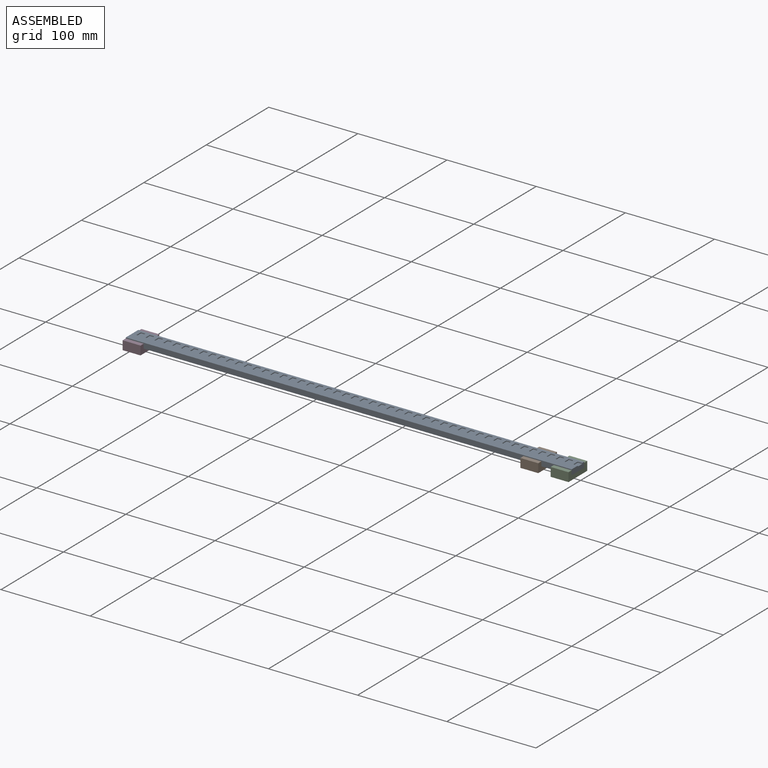
[diagram: assembled view]
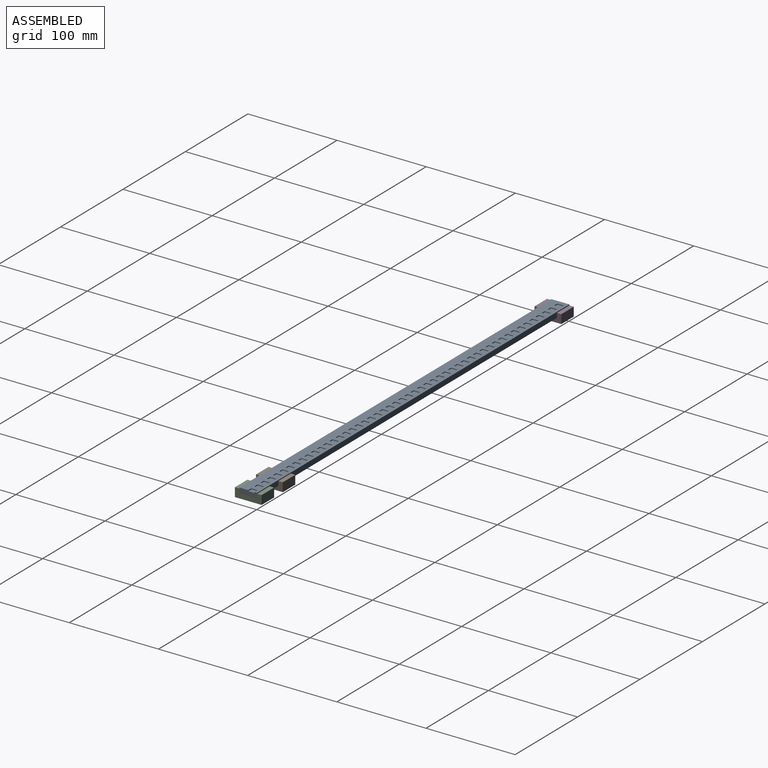
[diagram: assembled view, second angle]
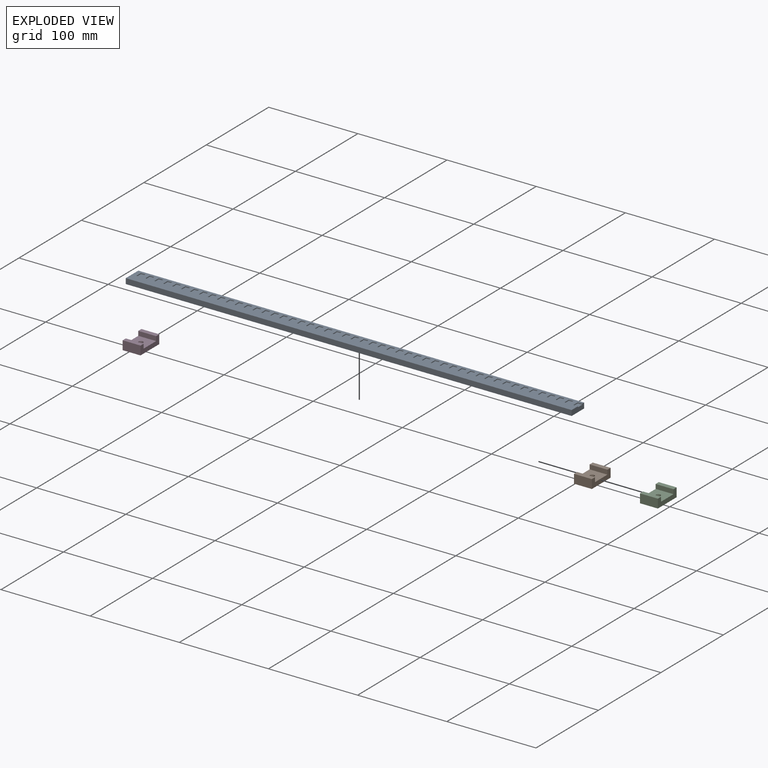
[diagram: exploded view]
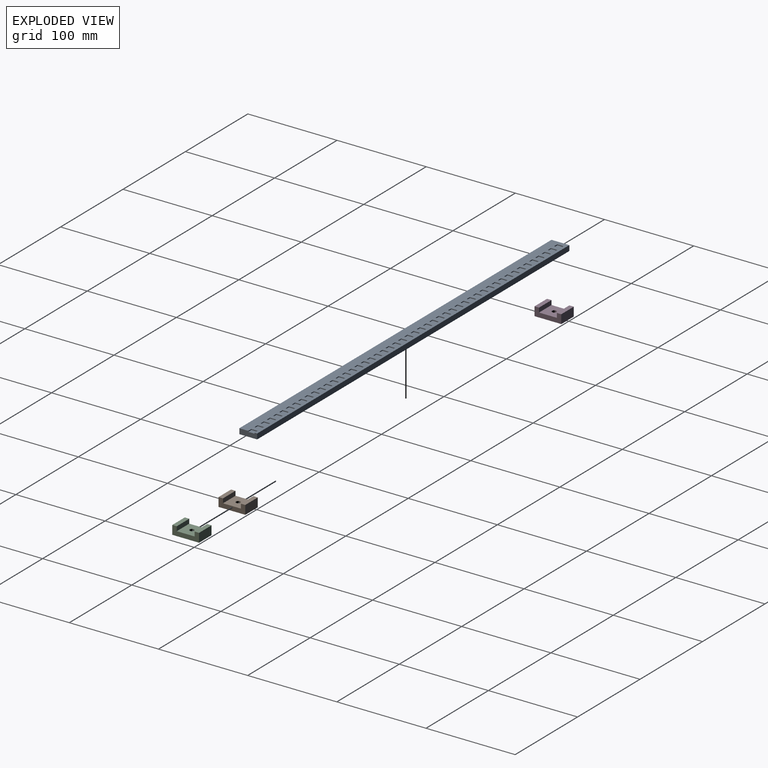
[diagram: exploded view, second angle]
ASSEMBLY  parts=4 mates=3
PART A: 255 faces, bbox 500x20x6 mm
  f0: plane 7x5mm, normal (0,0,1), area 35mm2, adj f4,f150,f151,f202
  f1: plane 500x6mm, normal (0,1,0), area 3000mm2, adj f2,f4,f5,f205
  f2: plane 20x6mm, normal (-1,0,0), area 120mm2, adj f1,f3,f5,f205
  f3: plane 500x6mm, normal (0,-1,0), area 3000mm2, adj f2,f4,f5,f205
  f4: plane 20x6mm, normal (1,0,0), area 113mm2, adj f0,f1,f3,f5,f151,f202,f205
  f5: plane 500x20mm, normal (0,0,-1), area 10000mm2, adj f1,f2,f3,f4
  f6: plane 7x1mm, normal (1,0,0), area 7mm2, adj f7,f204,f205,f206
  f7: plane 5x1mm, normal (0,-1,0), area 5mm2, adj f6,f8,f205,f206
  f8: plane 7x1mm, normal (-1,0,0), area 7mm2, adj f7,f204,f205,f206
  f9: plane 7x1mm, normal (1,0,0), area 7mm2, adj f10,f155,f205,f254
  f10: plane 5x1mm, normal (0,-1,0), area 5mm2, adj f9,f11,f205,f254
  f11: plane 7x1mm, normal (-1,0,0), area 7mm2, adj f10,f155,f205,f254
  f12: plane 7x1mm, normal (1,0,0), area 7mm2, adj f13,f156,f205,f253
  f13: plane 5x1mm, normal (0,-1,0), area 5mm2, adj f12,f14,f205,f253
  f14: plane 7x1mm, normal (-1,0,0), area 7mm2, adj f13,f156,f205,f253
  f15: plane 7x1mm, normal (1,0,0), area 7mm2, adj f16,f157,f205,f252
  f16: plane 5x1mm, normal (0,-1,0), area 5mm2, adj f15,f17,f205,f252
  f17: plane 7x1mm, normal (-1,0,0), area 7mm2, adj f16,f157,f205,f252
  f18: plane 7x1mm, normal (1,0,0), area 7mm2, adj f19,f158,f205,f251
  f19: plane 5x1mm, normal (0,-1,0), area 5mm2, adj f18,f20,f205,f251
  f20: plane 7x1mm, normal (-1,0,0), area 7mm2, adj f19,f158,f205,f251
  f21: plane 7x1mm, normal (1,0,0), area 7mm2, adj f22,f159,f205,f250
  f22: plane 5x1mm, normal (0,-1,0), area 5mm2, adj f21,f23,f205,f250
  f23: plane 7x1mm, normal (-1,0,0), area 7mm2, adj f22,f159,f205,f250
  f24: plane 7x1mm, normal (1,0,0), area 7mm2, adj f25,f160,f205,f249
  f25: plane 5x1mm, normal (0,-1,0), area 5mm2, adj f24,f26,f205,f249
  f26: plane 7x1mm, normal (-1,0,0), area 7mm2, adj f25,f160,f205,f249
  f27: plane 7x1mm, normal (1,0,0), area 7mm2, adj f28,f161,f205,f248
  f28: plane 5x1mm, normal (0,-1,0), area 5mm2, adj f27,f29,f205,f248
  f29: plane 7x1mm, normal (-1,0,0), area 7mm2, adj f28,f161,f205,f248
  f30: plane 7x1mm, normal (1,0,0), area 7mm2, adj f31,f162,f205,f247
  f31: plane 5x1mm, normal (0,-1,0), area 5mm2, adj f30,f32,f205,f247
  f32: plane 7x1mm, normal (-1,0,0), area 7mm2, adj f31,f162,f205,f247
  f33: plane 7x1mm, normal (1,0,0), area 7mm2, adj f34,f163,f205,f246
  f34: plane 5x1mm, normal (0,-1,0), area 5mm2, adj f33,f35,f205,f246
  f35: plane 7x1mm, normal (-1,0,0), area 7mm2, adj f34,f163,f205,f246
  f36: plane 7x1mm, normal (1,0,0), area 7mm2, adj f37,f164,f205,f245
  f37: plane 5x1mm, normal (0,-1,0), area 5mm2, adj f36,f38,f205,f245
  f38: plane 7x1mm, normal (-1,0,0), area 7mm2, adj f37,f164,f205,f245
  f39: plane 7x1mm, normal (1,0,0), area 7mm2, adj f40,f165,f205,f244
  f40: plane 5x1mm, normal (0,-1,0), area 5mm2, adj f39,f41,f205,f244
  f41: plane 7x1mm, normal (-1,0,0), area 7mm2, adj f40,f165,f205,f244
  f42: plane 7x1mm, normal (1,0,0), area 7mm2, adj f43,f166,f205,f243
  f43: plane 5x1mm, normal (0,-1,0), area 5mm2, adj f42,f44,f205,f243
  f44: plane 7x1mm, normal (-1,0,0), area 7mm2, adj f43,f166,f205,f243
  f45: plane 7x1mm, normal (1,0,0), area 7mm2, adj f46,f167,f205,f242
  f46: plane 5x1mm, normal (0,-1,0), area 5mm2, adj f45,f47,f205,f242
  f47: plane 7x1mm, normal (-1,0,0), area 7mm2, adj f46,f167,f205,f242
  f48: plane 7x1mm, normal (1,0,0), area 7mm2, adj f49,f168,f205,f241
  f49: plane 5x1mm, normal (0,-1,0), area 5mm2, adj f48,f50,f205,f241
  f50: plane 7x1mm, normal (-1,0,0), area 7mm2, adj f49,f168,f205,f241
  f51: plane 7x1mm, normal (1,0,0), area 7mm2, adj f52,f169,f205,f240
  f52: plane 5x1mm, normal (0,-1,0), area 5mm2, adj f51,f53,f205,f240
  f53: plane 7x1mm, normal (-1,0,0), area 7mm2, adj f52,f169,f205,f240
  f54: plane 7x1mm, normal (1,0,0), area 7mm2, adj f55,f170,f205,f239
  f55: plane 5x1mm, normal (0,-1,0), area 5mm2, adj f54,f56,f205,f239
  f56: plane 7x1mm, normal (-1,0,0), area 7mm2, adj f55,f170,f205,f239
  f57: plane 7x1mm, normal (1,0,0), area 7mm2, adj f58,f171,f205,f238
  f58: plane 5x1mm, normal (0,-1,0), area 5mm2, adj f57,f59,f205,f238
  f59: plane 7x1mm, normal (-1,0,0), area 7mm2, adj f58,f171,f205,f238
  f60: plane 7x1mm, normal (1,0,0), area 7mm2, adj f61,f172,f205,f237
  f61: plane 5x1mm, normal (0,-1,0), area 5mm2, adj f60,f62,f205,f237
  f62: plane 7x1mm, normal (-1,0,0), area 7mm2, adj f61,f172,f205,f237
  f63: plane 7x1mm, normal (1,0,0), area 7mm2, adj f64,f173,f205,f236
  f64: plane 5x1mm, normal (0,-1,0), area 5mm2, adj f63,f65,f205,f236
  f65: plane 7x1mm, normal (-1,0,0), area 7mm2, adj f64,f173,f205,f236
  f66: plane 7x1mm, normal (1,0,0), area 7mm2, adj f67,f174,f205,f235
  f67: plane 5x1mm, normal (0,-1,0), area 5mm2, adj f66,f68,f205,f235
  f68: plane 7x1mm, normal (-1,0,0), area 7mm2, adj f67,f174,f205,f235
  f69: plane 7x1mm, normal (1,0,0), area 7mm2, adj f70,f175,f205,f234
  f70: plane 5x1mm, normal (0,-1,0), area 5mm2, adj f69,f71,f205,f234
  f71: plane 7x1mm, normal (-1,0,0), area 7mm2, adj f70,f175,f205,f234
  f72: plane 7x1mm, normal (1,0,0), area 7mm2, adj f73,f176,f205,f233
  f73: plane 5x1mm, normal (0,-1,0), area 5mm2, adj f72,f74,f205,f233
  f74: plane 7x1mm, normal (-1,0,0), area 7mm2, adj f73,f176,f205,f233
  f75: plane 7x1mm, normal (1,0,0), area 7mm2, adj f76,f177,f205,f232
  f76: plane 5x1mm, normal (0,-1,0), area 5mm2, adj f75,f77,f205,f232
  f77: plane 7x1mm, normal (-1,0,0), area 7mm2, adj f76,f177,f205,f232
  f78: plane 7x1mm, normal (1,0,0), area 7mm2, adj f79,f178,f205,f231
  f79: plane 5x1mm, normal (0,-1,0), area 5mm2, adj f78,f80,f205,f231
  f80: plane 7x1mm, normal (-1,0,0), area 7mm2, adj f79,f178,f205,f231
  f81: plane 7x1mm, normal (1,0,0), area 7mm2, adj f82,f179,f205,f230
  f82: plane 5x1mm, normal (0,-1,0), area 5mm2, adj f81,f83,f205,f230
  f83: plane 7x1mm, normal (-1,0,0), area 7mm2, adj f82,f179,f205,f230
  f84: plane 7x1mm, normal (1,0,0), area 7mm2, adj f85,f180,f205,f229
  f85: plane 5x1mm, normal (0,-1,0), area 5mm2, adj f84,f86,f205,f229
  f86: plane 7x1mm, normal (-1,0,0), area 7mm2, adj f85,f180,f205,f229
  f87: plane 7x1mm, normal (1,0,0), area 7mm2, adj f88,f181,f205,f228
  f88: plane 5x1mm, normal (0,-1,0), area 5mm2, adj f87,f89,f205,f228
  f89: plane 7x1mm, normal (-1,0,0), area 7mm2, adj f88,f181,f205,f228
  f90: plane 7x1mm, normal (1,0,0), area 7mm2, adj f91,f182,f205,f227
  f91: plane 5x1mm, normal (0,-1,0), area 5mm2, adj f90,f92,f205,f227
  f92: plane 7x1mm, normal (-1,0,0), area 7mm2, adj f91,f182,f205,f227
  f93: plane 7x1mm, normal (1,0,0), area 7mm2, adj f94,f183,f205,f226
  f94: plane 5x1mm, normal (0,-1,0), area 5mm2, adj f93,f95,f205,f226
  f95: plane 7x1mm, normal (-1,0,0), area 7mm2, adj f94,f183,f205,f226
  f96: plane 7x1mm, normal (1,0,0), area 7mm2, adj f97,f184,f205,f225
  f97: plane 5x1mm, normal (0,-1,0), area 5mm2, adj f96,f98,f205,f225
  f98: plane 7x1mm, normal (-1,0,0), area 7mm2, adj f97,f184,f205,f225
  f99: plane 7x1mm, normal (1,0,0), area 7mm2, adj f100,f185,f205,f224
  f100: plane 5x1mm, normal (0,-1,0), area 5mm2, adj f99,f101,f205,f224
  f101: plane 7x1mm, normal (-1,0,0), area 7mm2, adj f100,f185,f205,f224
  f102: plane 7x1mm, normal (1,0,0), area 7mm2, adj f103,f186,f205,f223
  f103: plane 5x1mm, normal (0,-1,0), area 5mm2, adj f102,f104,f205,f223
  f104: plane 7x1mm, normal (-1,0,0), area 7mm2, adj f103,f186,f205,f223
  f105: plane 7x1mm, normal (1,0,0), area 7mm2, adj f106,f187,f205,f222
  f106: plane 5x1mm, normal (0,-1,0), area 5mm2, adj f105,f107,f205,f222
  f107: plane 7x1mm, normal (-1,0,0), area 7mm2, adj f106,f187,f205,f222
  f108: plane 7x1mm, normal (1,0,0), area 7mm2, adj f109,f188,f205,f221
  f109: plane 5x1mm, normal (0,-1,0), area 5mm2, adj f108,f110,f205,f221
  f110: plane 7x1mm, normal (-1,0,0), area 7mm2, adj f109,f188,f205,f221
  f111: plane 7x1mm, normal (1,0,0), area 7mm2, adj f112,f189,f205,f220
  f112: plane 5x1mm, normal (0,-1,0), area 5mm2, adj f111,f113,f205,f220
  f113: plane 7x1mm, normal (-1,0,0), area 7mm2, adj f112,f189,f205,f220
  f114: plane 7x1mm, normal (1,0,0), area 7mm2, adj f115,f190,f205,f219
  f115: plane 5x1mm, normal (0,-1,0), area 5mm2, adj f114,f116,f205,f219
  f116: plane 7x1mm, normal (-1,0,0), area 7mm2, adj f115,f190,f205,f219
  f117: plane 7x1mm, normal (1,0,0), area 7mm2, adj f118,f191,f205,f218
  f118: plane 5x1mm, normal (0,-1,0), area 5mm2, adj f117,f119,f205,f218
  f119: plane 7x1mm, normal (-1,0,0), area 7mm2, adj f118,f191,f205,f218
  f120: plane 7x1mm, normal (1,0,0), area 7mm2, adj f121,f192,f205,f217
  f121: plane 5x1mm, normal (0,-1,0), area 5mm2, adj f120,f122,f205,f217
  f122: plane 7x1mm, normal (-1,0,0), area 7mm2, adj f121,f192,f205,f217
  f123: plane 7x1mm, normal (1,0,0), area 7mm2, adj f124,f193,f205,f216
  f124: plane 5x1mm, normal (0,-1,0), area 5mm2, adj f123,f125,f205,f216
  f125: plane 7x1mm, normal (-1,0,0), area 7mm2, adj f124,f193,f205,f216
  f126: plane 7x1mm, normal (1,0,0), area 7mm2, adj f127,f194,f205,f215
  f127: plane 5x1mm, normal (0,-1,0), area 5mm2, adj f126,f128,f205,f215
  f128: plane 7x1mm, normal (-1,0,0), area 7mm2, adj f127,f194,f205,f215
  f129: plane 7x1mm, normal (1,0,0), area 7mm2, adj f130,f195,f205,f214
  f130: plane 5x1mm, normal (0,-1,0), area 5mm2, adj f129,f131,f205,f214
  f131: plane 7x1mm, normal (-1,0,0), area 7mm2, adj f130,f195,f205,f214
  f132: plane 7x1mm, normal (1,0,0), area 7mm2, adj f133,f196,f205,f213
  f133: plane 5x1mm, normal (0,-1,0), area 5mm2, adj f132,f134,f205,f213
  f134: plane 7x1mm, normal (-1,0,0), area 7mm2, adj f133,f196,f205,f213
  f135: plane 7x1mm, normal (1,0,0), area 7mm2, adj f136,f197,f205,f212
  f136: plane 5x1mm, normal (0,-1,0), area 5mm2, adj f135,f137,f205,f212
  f137: plane 7x1mm, normal (-1,0,0), area 7mm2, adj f136,f197,f205,f212
  f138: plane 7x1mm, normal (1,0,0), area 7mm2, adj f139,f198,f205,f211
  f139: plane 5x1mm, normal (0,-1,0), area 5mm2, adj f138,f140,f205,f211
  f140: plane 7x1mm, normal (-1,0,0), area 7mm2, adj f139,f198,f205,f211
  f141: plane 7x1mm, normal (1,0,0), area 7mm2, adj f142,f199,f205,f210
  f142: plane 5x1mm, normal (0,-1,0), area 5mm2, adj f141,f143,f205,f210
  f143: plane 7x1mm, normal (-1,0,0), area 7mm2, adj f142,f199,f205,f210
  f144: plane 7x1mm, normal (1,0,0), area 7mm2, adj f145,f200,f205,f209
  f145: plane 5x1mm, normal (0,-1,0), area 5mm2, adj f144,f146,f205,f209
  f146: plane 7x1mm, normal (-1,0,0), area 7mm2, adj f145,f200,f205,f209
  f147: plane 7x1mm, normal (1,0,0), area 7mm2, adj f148,f201,f205,f208
  f148: plane 5x1mm, normal (0,-1,0), area 5mm2, adj f147,f149,f205,f208
  f149: plane 7x1mm, normal (-1,0,0), area 7mm2, adj f148,f201,f205,f208
  f150: plane 7x1mm, normal (1,0,0), area 7mm2, adj f0,f151,f202,f205
  f151: plane 5x1mm, normal (0,-1,0), area 5mm2, adj f0,f4,f150,f205
  f152: plane 7x1mm, normal (1,0,0), area 7mm2, adj f153,f203,f205,f207
  f153: plane 5x1mm, normal (0,-1,0), area 5mm2, adj f152,f154,f205,f207
  f154: plane 7x1mm, normal (-1,0,0), area 7mm2, adj f153,f203,f205,f207
  f155: plane 5x1mm, normal (0,1,0), area 5mm2, adj f9,f11,f205,f254
  f156: plane 5x1mm, normal (0,1,0), area 5mm2, adj f12,f14,f205,f253
  f157: plane 5x1mm, normal (0,1,0), area 5mm2, adj f15,f17,f205,f252
  f158: plane 5x1mm, normal (0,1,0), area 5mm2, adj f18,f20,f205,f251
  f159: plane 5x1mm, normal (0,1,0), area 5mm2, adj f21,f23,f205,f250
  f160: plane 5x1mm, normal (0,1,0), area 5mm2, adj f24,f26,f205,f249
  f161: plane 5x1mm, normal (0,1,0), area 5mm2, adj f27,f29,f205,f248
  f162: plane 5x1mm, normal (0,1,0), area 5mm2, adj f30,f32,f205,f247
  f163: plane 5x1mm, normal (0,1,0), area 5mm2, adj f33,f35,f205,f246
  f164: plane 5x1mm, normal (0,1,0), area 5mm2, adj f36,f38,f205,f245
  f165: plane 5x1mm, normal (0,1,0), area 5mm2, adj f39,f41,f205,f244
  f166: plane 5x1mm, normal (0,1,0), area 5mm2, adj f42,f44,f205,f243
  f167: plane 5x1mm, normal (0,1,0), area 5mm2, adj f45,f47,f205,f242
  f168: plane 5x1mm, normal (0,1,0), area 5mm2, adj f48,f50,f205,f241
  f169: plane 5x1mm, normal (0,1,0), area 5mm2, adj f51,f53,f205,f240
  f170: plane 5x1mm, normal (0,1,0), area 5mm2, adj f54,f56,f205,f239
  f171: plane 5x1mm, normal (0,1,0), area 5mm2, adj f57,f59,f205,f238
  f172: plane 5x1mm, normal (0,1,0), area 5mm2, adj f60,f62,f205,f237
  f173: plane 5x1mm, normal (0,1,0), area 5mm2, adj f63,f65,f205,f236
  f174: plane 5x1mm, normal (0,1,0), area 5mm2, adj f66,f68,f205,f235
  f175: plane 5x1mm, normal (0,1,0), area 5mm2, adj f69,f71,f205,f234
  f176: plane 5x1mm, normal (0,1,0), area 5mm2, adj f72,f74,f205,f233
  f177: plane 5x1mm, normal (0,1,0), area 5mm2, adj f75,f77,f205,f232
  f178: plane 5x1mm, normal (0,1,0), area 5mm2, adj f78,f80,f205,f231
  f179: plane 5x1mm, normal (0,1,0), area 5mm2, adj f81,f83,f205,f230
  f180: plane 5x1mm, normal (0,1,0), area 5mm2, adj f84,f86,f205,f229
  f181: plane 5x1mm, normal (0,1,0), area 5mm2, adj f87,f89,f205,f228
  f182: plane 5x1mm, normal (0,1,0), area 5mm2, adj f90,f92,f205,f227
  f183: plane 5x1mm, normal (0,1,0), area 5mm2, adj f93,f95,f205,f226
  f184: plane 5x1mm, normal (0,1,0), area 5mm2, adj f96,f98,f205,f225
  f185: plane 5x1mm, normal (0,1,0), area 5mm2, adj f99,f101,f205,f224
  f186: plane 5x1mm, normal (0,1,0), area 5mm2, adj f102,f104,f205,f223
  f187: plane 5x1mm, normal (0,1,0), area 5mm2, adj f105,f107,f205,f222
  f188: plane 5x1mm, normal (0,1,0), area 5mm2, adj f108,f110,f205,f221
  f189: plane 5x1mm, normal (0,1,0), area 5mm2, adj f111,f113,f205,f220
  f190: plane 5x1mm, normal (0,1,0), area 5mm2, adj f114,f116,f205,f219
  f191: plane 5x1mm, normal (0,1,0), area 5mm2, adj f117,f119,f205,f218
  f192: plane 5x1mm, normal (0,1,0), area 5mm2, adj f120,f122,f205,f217
  f193: plane 5x1mm, normal (0,1,0), area 5mm2, adj f123,f125,f205,f216
  f194: plane 5x1mm, normal (0,1,0), area 5mm2, adj f126,f128,f205,f215
  f195: plane 5x1mm, normal (0,1,0), area 5mm2, adj f129,f131,f205,f214
  f196: plane 5x1mm, normal (0,1,0), area 5mm2, adj f132,f134,f205,f213
  f197: plane 5x1mm, normal (0,1,0), area 5mm2, adj f135,f137,f205,f212
  f198: plane 5x1mm, normal (0,1,0), area 5mm2, adj f138,f140,f205,f211
  f199: plane 5x1mm, normal (0,1,0), area 5mm2, adj f141,f143,f205,f210
  f200: plane 5x1mm, normal (0,1,0), area 5mm2, adj f144,f146,f205,f209
  f201: plane 5x1mm, normal (0,1,0), area 5mm2, adj f147,f149,f205,f208
  f202: plane 5x1mm, normal (0,1,0), area 5mm2, adj f0,f4,f150,f205
  f203: plane 5x1mm, normal (0,1,0), area 5mm2, adj f152,f154,f205,f207
  f204: plane 5x1mm, normal (0,1,0), area 5mm2, adj f6,f8,f205,f206
  f205: plane 500x20mm, normal (0,0,1), area 8250mm2, adj f1,f2,f3,f4,f6,f7,f8,f9
  f206: plane 7x5mm, normal (0,0,1), area 35mm2, adj f6,f7,f8,f204
  f207: plane 7x5mm, normal (0,0,1), area 35mm2, adj f152,f153,f154,f203
  f208: plane 7x5mm, normal (0,0,1), area 35mm2, adj f147,f148,f149,f201
  f209: plane 7x5mm, normal (0,0,1), area 35mm2, adj f144,f145,f146,f200
  f210: plane 7x5mm, normal (0,0,1), area 35mm2, adj f141,f142,f143,f199
  f211: plane 7x5mm, normal (0,0,1), area 35mm2, adj f138,f139,f140,f198
  f212: plane 7x5mm, normal (0,0,1), area 35mm2, adj f135,f136,f137,f197
  f213: plane 7x5mm, normal (0,0,1), area 35mm2, adj f132,f133,f134,f196
  f214: plane 7x5mm, normal (0,0,1), area 35mm2, adj f129,f130,f131,f195
  f215: plane 7x5mm, normal (0,0,1), area 35mm2, adj f126,f127,f128,f194
  f216: plane 7x5mm, normal (0,0,1), area 35mm2, adj f123,f124,f125,f193
  f217: plane 7x5mm, normal (0,0,1), area 35mm2, adj f120,f121,f122,f192
  f218: plane 7x5mm, normal (0,0,1), area 35mm2, adj f117,f118,f119,f191
  f219: plane 7x5mm, normal (0,0,1), area 35mm2, adj f114,f115,f116,f190
  f220: plane 7x5mm, normal (0,0,1), area 35mm2, adj f111,f112,f113,f189
  f221: plane 7x5mm, normal (0,0,1), area 35mm2, adj f108,f109,f110,f188
  f222: plane 7x5mm, normal (0,0,1), area 35mm2, adj f105,f106,f107,f187
  f223: plane 7x5mm, normal (0,0,1), area 35mm2, adj f102,f103,f104,f186
  f224: plane 7x5mm, normal (0,0,1), area 35mm2, adj f99,f100,f101,f185
  f225: plane 7x5mm, normal (0,0,1), area 35mm2, adj f96,f97,f98,f184
  f226: plane 7x5mm, normal (0,0,1), area 35mm2, adj f93,f94,f95,f183
  f227: plane 7x5mm, normal (0,0,1), area 35mm2, adj f90,f91,f92,f182
  f228: plane 7x5mm, normal (0,0,1), area 35mm2, adj f87,f88,f89,f181
  f229: plane 7x5mm, normal (0,0,1), area 35mm2, adj f84,f85,f86,f180
  f230: plane 7x5mm, normal (0,0,1), area 35mm2, adj f81,f82,f83,f179
  f231: plane 7x5mm, normal (0,0,1), area 35mm2, adj f78,f79,f80,f178
  f232: plane 7x5mm, normal (0,0,1), area 35mm2, adj f75,f76,f77,f177
  f233: plane 7x5mm, normal (0,0,1), area 35mm2, adj f72,f73,f74,f176
  f234: plane 7x5mm, normal (0,0,1), area 35mm2, adj f69,f70,f71,f175
  f235: plane 7x5mm, normal (0,0,1), area 35mm2, adj f66,f67,f68,f174
  f236: plane 7x5mm, normal (0,0,1), area 35mm2, adj f63,f64,f65,f173
  f237: plane 7x5mm, normal (0,0,1), area 35mm2, adj f60,f61,f62,f172
  f238: plane 7x5mm, normal (0,0,1), area 35mm2, adj f57,f58,f59,f171
  f239: plane 7x5mm, normal (0,0,1), area 35mm2, adj f54,f55,f56,f170
  f240: plane 7x5mm, normal (0,0,1), area 35mm2, adj f51,f52,f53,f169
  f241: plane 7x5mm, normal (0,0,1), area 35mm2, adj f48,f49,f50,f168
  f242: plane 7x5mm, normal (0,0,1), area 35mm2, adj f45,f46,f47,f167
  f243: plane 7x5mm, normal (0,0,1), area 35mm2, adj f42,f43,f44,f166
  f244: plane 7x5mm, normal (0,0,1), area 35mm2, adj f39,f40,f41,f165
  f245: plane 7x5mm, normal (0,0,1), area 35mm2, adj f36,f37,f38,f164
  f246: plane 7x5mm, normal (0,0,1), area 35mm2, adj f33,f34,f35,f163
  f247: plane 7x5mm, normal (0,0,1), area 35mm2, adj f30,f31,f32,f162
  f248: plane 7x5mm, normal (0,0,1), area 35mm2, adj f27,f28,f29,f161
  f249: plane 7x5mm, normal (0,0,1), area 35mm2, adj f24,f25,f26,f160
  f250: plane 7x5mm, normal (0,0,1), area 35mm2, adj f21,f22,f23,f159
  f251: plane 7x5mm, normal (0,0,1), area 35mm2, adj f18,f19,f20,f158
  f252: plane 7x5mm, normal (0,0,1), area 35mm2, adj f15,f16,f17,f157
  f253: plane 7x5mm, normal (0,0,1), area 35mm2, adj f12,f13,f14,f156
  f254: plane 7x5mm, normal (0,0,1), area 35mm2, adj f9,f10,f11,f155
PART B: 11 faces, bbox 20x30x10 mm
  f0: plane 20x20mm, normal (0,0,1), area 380.4mm2, adj f1,f7,f8,f9,f10
  f1: plane 20x5mm, normal (0,1,0), area 100mm2, adj f0,f2,f8,f9
  f2: plane 20x5mm, normal (0,0,1), area 100mm2, adj f1,f3,f8,f9
  f3: plane 20x10mm, normal (0,-1,0), area 200mm2, adj f2,f4,f8,f9
  f4: plane 30x20mm, normal (0,0,-1), area 580.4mm2, adj f3,f5,f8,f9,f10
  f5: plane 20x10mm, normal (0,1,0), area 200mm2, adj f4,f6,f8,f9
  f6: plane 20x5mm, normal (0,0,1), area 100mm2, adj f5,f7,f8,f9
  f7: plane 20x5mm, normal (0,-1,0), area 100mm2, adj f0,f6,f8,f9
  f8: plane 30x10mm, normal (1,0,0), area 200mm2, adj f0,f1,f2,f3,f4,f5,f6,f7
  f9: plane 30x10mm, normal (-1,0,0), area 200mm2, adj f0,f1,f2,f3,f4,f5,f6,f7
  f10: cylinder r=2.5mm len=5mm, axis (0,0,-1), area 78.5mm2, adj f0,f4
PART C: same geometry as B
PART D: same geometry as B
PLACE A t=(-46.12,0.06,40.03)mm fixed
PLACE B t=(-41.64,-7.75,40.03)mm
PLACE C t=(-7.69,-7.75,40.03)mm
PLACE D t=(-487.69,-7.75,40.03)mm
MATE slider A.f4 <-> C.f8  axis (1,0,0) through (2.31,-17.75,40.03)mm
MATE fastened A.f2 <-> D.f9  axis (-1,0,0) through (-497.69,-17.75,40.03)mm
MATE slider B.f8 <-> A.f4  axis (1,0,0) through (-31.64,2.25,40.03)mm
